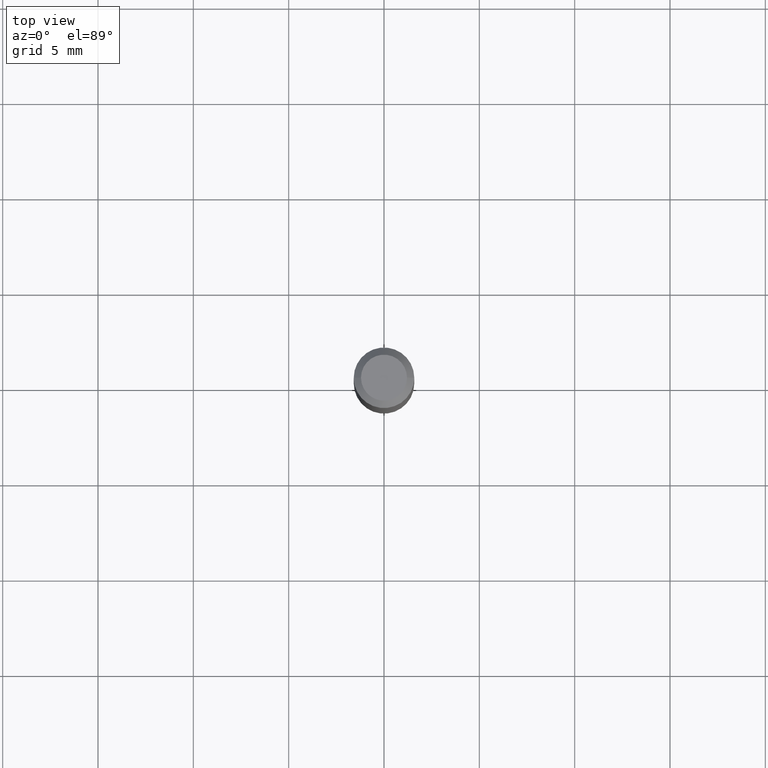
[diagram: clean part render]
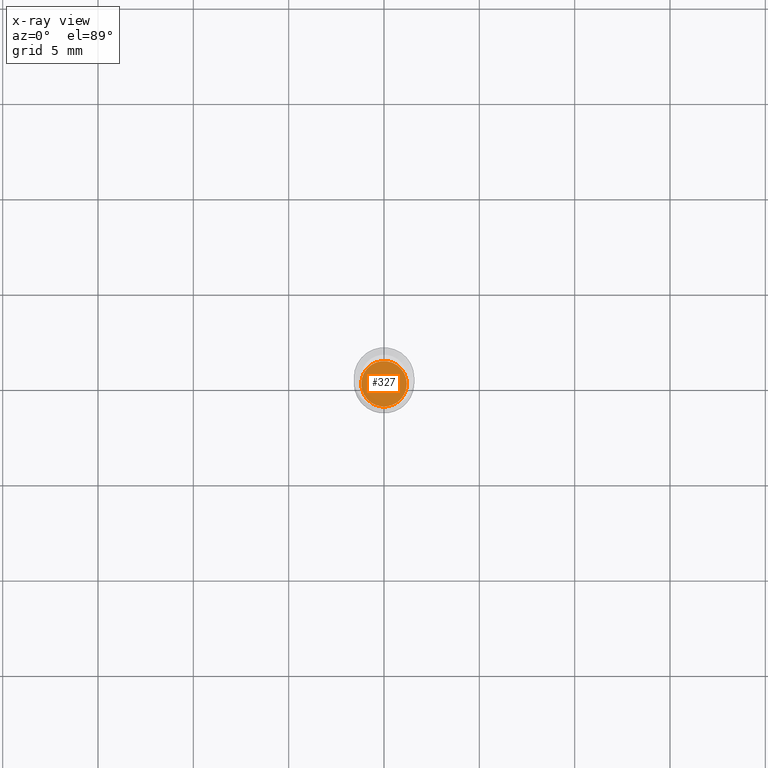
[diagram: x-ray — body ghosted, one internal face saturated and labeled with its STEP entity id]
A machine part, top view, then the same camera in x-ray: the body is ghosted and one INTERNAL B-rep face — a face not visible from any outside direction — is saturated and labeled: STEP entity #327.
In plain terms, the highlighted planar face has unit normal (-0, 0, 1).
Its self-contained STEP definition (entity closure, byte-faithful):
#14 = VERTEX_POINT ( 'NONE', #316 ) ;
#24 = CARTESIAN_POINT ( 'NONE',  ( 0.04699999999999999317, -2.911895436595182338E-15, -0.7400000000000002132 ) ) ;
#76 = EDGE_CURVE ( 'NONE', #277, #14, #335, .T. ) ;
#87 = ORIENTED_EDGE ( 'NONE', *, *, #76, .F. ) ;
#88 = AXIS2_PLACEMENT_3D ( 'NONE', #206, #334, #452 ) ;
#111 = DIRECTION ( 'NONE',  ( -2.445468806185136597E-29, 3.491481338843145583E-15, 1.000000000000000000 ) ) ;
#123 = EDGE_LOOP ( 'NONE', ( #87, #214 ) ) ;
#206 = CARTESIAN_POINT ( 'NONE',  ( 1.809646916577001463E-29, -2.583696190743928228E-15, -0.7400000000000002132 ) ) ;
#214 = ORIENTED_EDGE ( 'NONE', *, *, #223, .F. ) ;
#223 = EDGE_CURVE ( 'NONE', #14, #277, #329, .T. ) ;
#249 = DIRECTION ( 'NONE',  ( -2.438088387897960049E-29, 3.491481338843145188E-15, 1.000000000000000000 ) ) ;
#277 = VERTEX_POINT ( 'NONE', #24 ) ;
#292 = AXIS2_PLACEMENT_3D ( 'NONE', #462, #249, #464 ) ;
#316 = CARTESIAN_POINT ( 'NONE',  ( -0.04699999999999999317, -2.247091877762570038E-15, -0.7400000000000002132 ) ) ;
#322 = PLANE ( 'NONE',  #292 ) ;
#327 = ADVANCED_FACE ( 'NONE', ( #394 ), #322, .F. ) ;
#329 = CIRCLE ( 'NONE', #358, 0.04699999999999999317 ) ;
#334 = DIRECTION ( 'NONE',  ( -2.445468806185136597E-29, 3.491481338843145583E-15, 1.000000000000000000 ) ) ;
#335 = CIRCLE ( 'NONE', #88, 0.04699999999999999317 ) ;
#358 = AXIS2_PLACEMENT_3D ( 'NONE', #419, #111, #390 ) ;
#390 = DIRECTION ( 'NONE',  ( 1.000000000000000000, -6.982962677686261977E-15, 0.000000000000000000 ) ) ;
#394 = FACE_OUTER_BOUND ( 'NONE', #123, .T. ) ;
#419 = CARTESIAN_POINT ( 'NONE',  ( 1.809646916577001463E-29, -2.583696190743928228E-15, -0.7400000000000002132 ) ) ;
#452 = DIRECTION ( 'NONE',  ( 1.000000000000000000, -6.982962677686261977E-15, 0.000000000000000000 ) ) ;
#462 = CARTESIAN_POINT ( 'NONE',  ( 1.809646916577001463E-29, -2.583696190743928228E-15, -0.7400000000000002132 ) ) ;
#464 = DIRECTION ( 'NONE',  ( 1.000000000000000000, -6.982962677686265922E-15, 4.876176775795935793E-29 ) ) ;